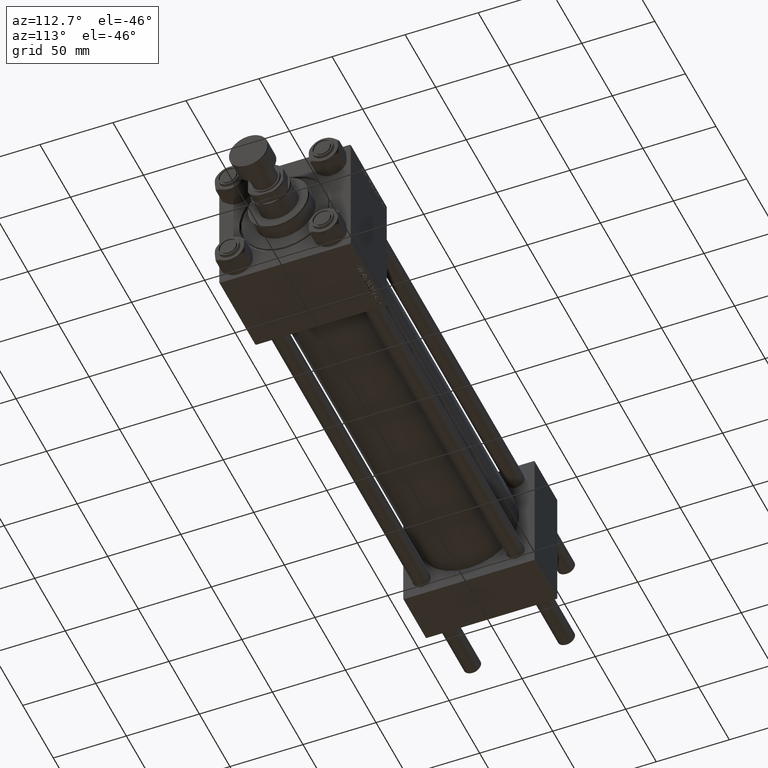
[diagram: clean part render]
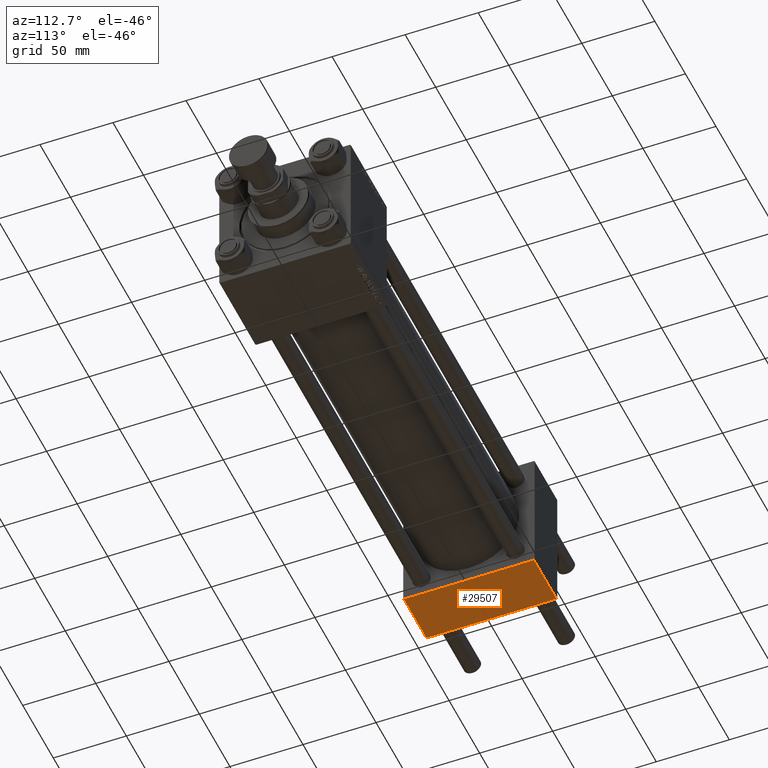
[diagram: same view with one face highlighted and labeled with its STEP entity id]
A machine part, auxiliary view. The second image highlights one B-rep face of the part: STEP entity #29507.
In plain terms, the highlighted planar face has unit normal (0, 0, -1).
Its self-contained STEP definition (entity closure, byte-faithful):
#79 = AXIS2_PLACEMENT_3D ( 'NONE', #35867, #24691, #35353 ) ;
#926 = ORIENTED_EDGE ( 'NONE', *, *, #30650, .T. ) ;
#1075 = EDGE_CURVE ( 'NONE', #8800, #19402, #31747, .T. ) ;
#1279 = LINE ( 'NONE', #47016, #22894 ) ;
#3271 = VERTEX_POINT ( 'NONE', #38177 ) ;
#3722 = DIRECTION ( 'NONE',  ( -1.000000000000000000, 0.000000000000000000, 0.000000000000000000 ) ) ;
#7741 = CARTESIAN_POINT ( 'NONE',  ( 37.00000000000000000, 44.49999999999998579, -44.99999999999998579 ) ) ;
#7777 = CARTESIAN_POINT ( 'NONE',  ( 0.000000000000000000, -44.49999999999995737, -45.00000000000000000 ) ) ;
#8575 = EDGE_CURVE ( 'NONE', #19402, #3271, #11538, .T. ) ;
#8800 = VERTEX_POINT ( 'NONE', #11800 ) ;
#11538 = LINE ( 'NONE', #29863, #44653 ) ;
#11800 = CARTESIAN_POINT ( 'NONE',  ( 0.000000000000000000, 44.49999999999998579, -44.99999999999998579 ) ) ;
#12525 = ORIENTED_EDGE ( 'NONE', *, *, #8575, .T. ) ;
#17007 = DIRECTION ( 'NONE',  ( 0.000000000000000000, -1.000000000000000000, -1.541976423090495633E-16 ) ) ;
#18193 = EDGE_CURVE ( 'NONE', #8800, #26498, #1279, .T. ) ;
#19402 = VERTEX_POINT ( 'NONE', #7741 ) ;
#20053 = DIRECTION ( 'NONE',  ( 1.000000000000000000, 0.000000000000000000, 0.000000000000000000 ) ) ;
#22514 = LINE ( 'NONE', #46166, #29354 ) ;
#22894 = VECTOR ( 'NONE', #17007, 1000.000000000000000 ) ;
#23925 = PLANE ( 'NONE',  #79 ) ;
#24691 = DIRECTION ( 'NONE',  ( 0.000000000000000000, 1.541976423090495880E-16, -1.000000000000000000 ) ) ;
#24928 = VECTOR ( 'NONE', #20053, 1000.000000000000000 ) ;
#26498 = VERTEX_POINT ( 'NONE', #7777 ) ;
#26608 = ORIENTED_EDGE ( 'NONE', *, *, #1075, .T. ) ;
#29354 = VECTOR ( 'NONE', #3722, 1000.000000000000000 ) ;
#29507 = ADVANCED_FACE ( 'NONE', ( #31540 ), #23925, .T. ) ;
#29863 = CARTESIAN_POINT ( 'NONE',  ( 37.00000000000000000, 44.99999999999998579, -44.99999999999998579 ) ) ;
#30505 = EDGE_LOOP ( 'NONE', ( #32728, #26608, #12525, #926 ) ) ;
#30650 = EDGE_CURVE ( 'NONE', #3271, #26498, #22514, .T. ) ;
#31540 = FACE_OUTER_BOUND ( 'NONE', #30505, .T. ) ;
#31747 = LINE ( 'NONE', #35810, #24928 ) ;
#32728 = ORIENTED_EDGE ( 'NONE', *, *, #18193, .F. ) ;
#35353 = DIRECTION ( 'NONE',  ( 0.000000000000000000, 1.000000000000000000, 1.541976423090495880E-16 ) ) ;
#35810 = CARTESIAN_POINT ( 'NONE',  ( 37.00000000000000000, 44.49999999999998579, -44.99999999999998579 ) ) ;
#35867 = CARTESIAN_POINT ( 'NONE',  ( 37.00000000000000000, 44.99999999999998579, -44.99999999999998579 ) ) ;
#38177 = CARTESIAN_POINT ( 'NONE',  ( 37.00000000000000000, -44.49999999999995737, -45.00000000000000000 ) ) ;
#44653 = VECTOR ( 'NONE', #49682, 1000.000000000000000 ) ;
#46166 = CARTESIAN_POINT ( 'NONE',  ( 0.000000000000000000, -44.49999999999998579, -45.00000000000000000 ) ) ;
#47016 = CARTESIAN_POINT ( 'NONE',  ( 0.000000000000000000, 44.99999999999998579, -44.99999999999998579 ) ) ;
#49682 = DIRECTION ( 'NONE',  ( 0.000000000000000000, -1.000000000000000000, -1.541976423090495633E-16 ) ) ;